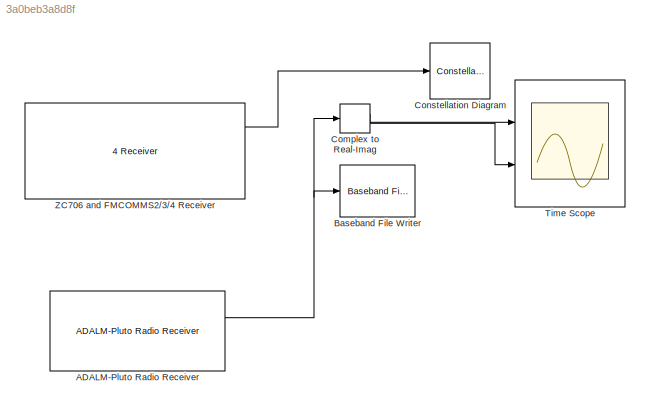
MODEL slx_3a0beb3a8d8f
KIND model
CONFIG AbsTol = auto
CONFIG EnableMultiTasking = off
CONFIG FixedStep = auto
CONFIG MaxStep = auto
CONFIG MinStep = auto
CONFIG RelTol = 1e-3
CONFIG SampleTimeConstraint = Unconstrained
CONFIG Solver = FixedStepDiscrete
CONFIG SolverName = FixedStepDiscrete
CONFIG StartTime = 0.0
CONFIG StopTime = inf
BLOCK [Reference] ADALM-Pluto Radio Receiver  REF=plutoradiolib/ADALM-Pluto Radio
Receiver
  Ports = [0, 2]
  SourceBlock = plutoradiolib/ADALM-Pluto Radio\nReceiver
  SourceLibraryInfo = This block requires <a href="http://www.mathworks.com/hardware-support/rtl-sdr.html">Communications System Toolbox Support Package for RTL-SDR Radio</a>
  SourceProductName = Communications System Toolbox Support Package for ADALM-PLUTO Radio
  SourceType = comm.internal.SDRRxPlutoSL
BLOCK [Reference] Baseband File Writer  REF=commsink2/Baseband File Writer
  Ports = [1]
  SourceBlock = commsink2/Baseband File Writer
  SourceProductBaseCode = CM
  SourceProductName = Communications System Toolbox
  SourceType = Baseband File Writer
BLOCK [ComplexToRealImag] Complex to Real-Imag
  Ports = [1, 2]
BLOCK [ConstellationDiagram] Constellation Diagram
  Commented = on
  Ports = [1]
  ScopeSpecificationString = comm.scopes.ConstellationDiagramBlockCfg('CurrentConfiguration', extmgr.ConfigurationSet(extmgr.Configuration('Core','General UI',true),extmgr.Configuration('Core','Source UI',true),extmgr.Configuration('Sources','WiredSimulink',true),extmgr.Configuration('Visuals','Constellation',true,'MinYLim','-289','MaxYLim','281','MinXLim','-289','MaxXLim','281','LineProperties',struct('DisplayName','','Color...<+1217ch>
BLOCK [Scope] Time Scope
  DefaultConfigurationName = spbscopes.TimeScopeBlockCfg
  NumInputPorts = 2
  Ports = [2]
  ScopeSpecificationString = spbscopes.TimeScopeBlockCfg('CurrentConfiguration', extmgr.ConfigurationSet(extmgr.Configuration('Core','General UI',true,'FigureColor',[0.156862745098039 0.156862745098039 0.156862745098039]),extmgr.Configuration('Core','Source UI',true),extmgr.Configuration('Sources','WiredSimulink',true),extmgr.Configuration('Visuals','Time Domain',true,'DisplayLayoutDimensions',[2 1],'DisplayPropertyDefaults',...<+2200ch>
  UserDataPersistent = on
BLOCK [Reference] ZC706 and FMCOMMS2//3//4 Receiver  REF=zc706fmc234_lib/ZC706 and 
FMCOMMS2//3//4 
Receiver
  Commented = on
  Ports = [0, 3]
  SourceBlock = zc706fmc234_lib/ZC706 and \nFMCOMMS2//3//4 \nReceiver
  SourceProductBaseCode = XILINXZYNQ
  SourceProductName = Communications System Toolbox Support Package for Xilinx Zynq-Based Radio
  SourceType = comm.internal.SDRRxZC706FMC234SL
NET ADALM-Pluto Radio Receiver:1 -> Baseband File Writer:1, Complex to Real-Imag:1
LINE Complex to Real-Imag:1 -> Time Scope:1
LINE Complex to Real-Imag:2 -> Time Scope:2
LINE ZC706 and FMCOMMS2//3//4 Receiver:1 -> Constellation Diagram:1
note: NET lines group one-source signal fan-out (src -> all destinations, sorted); 1:1 wires keep LINE
